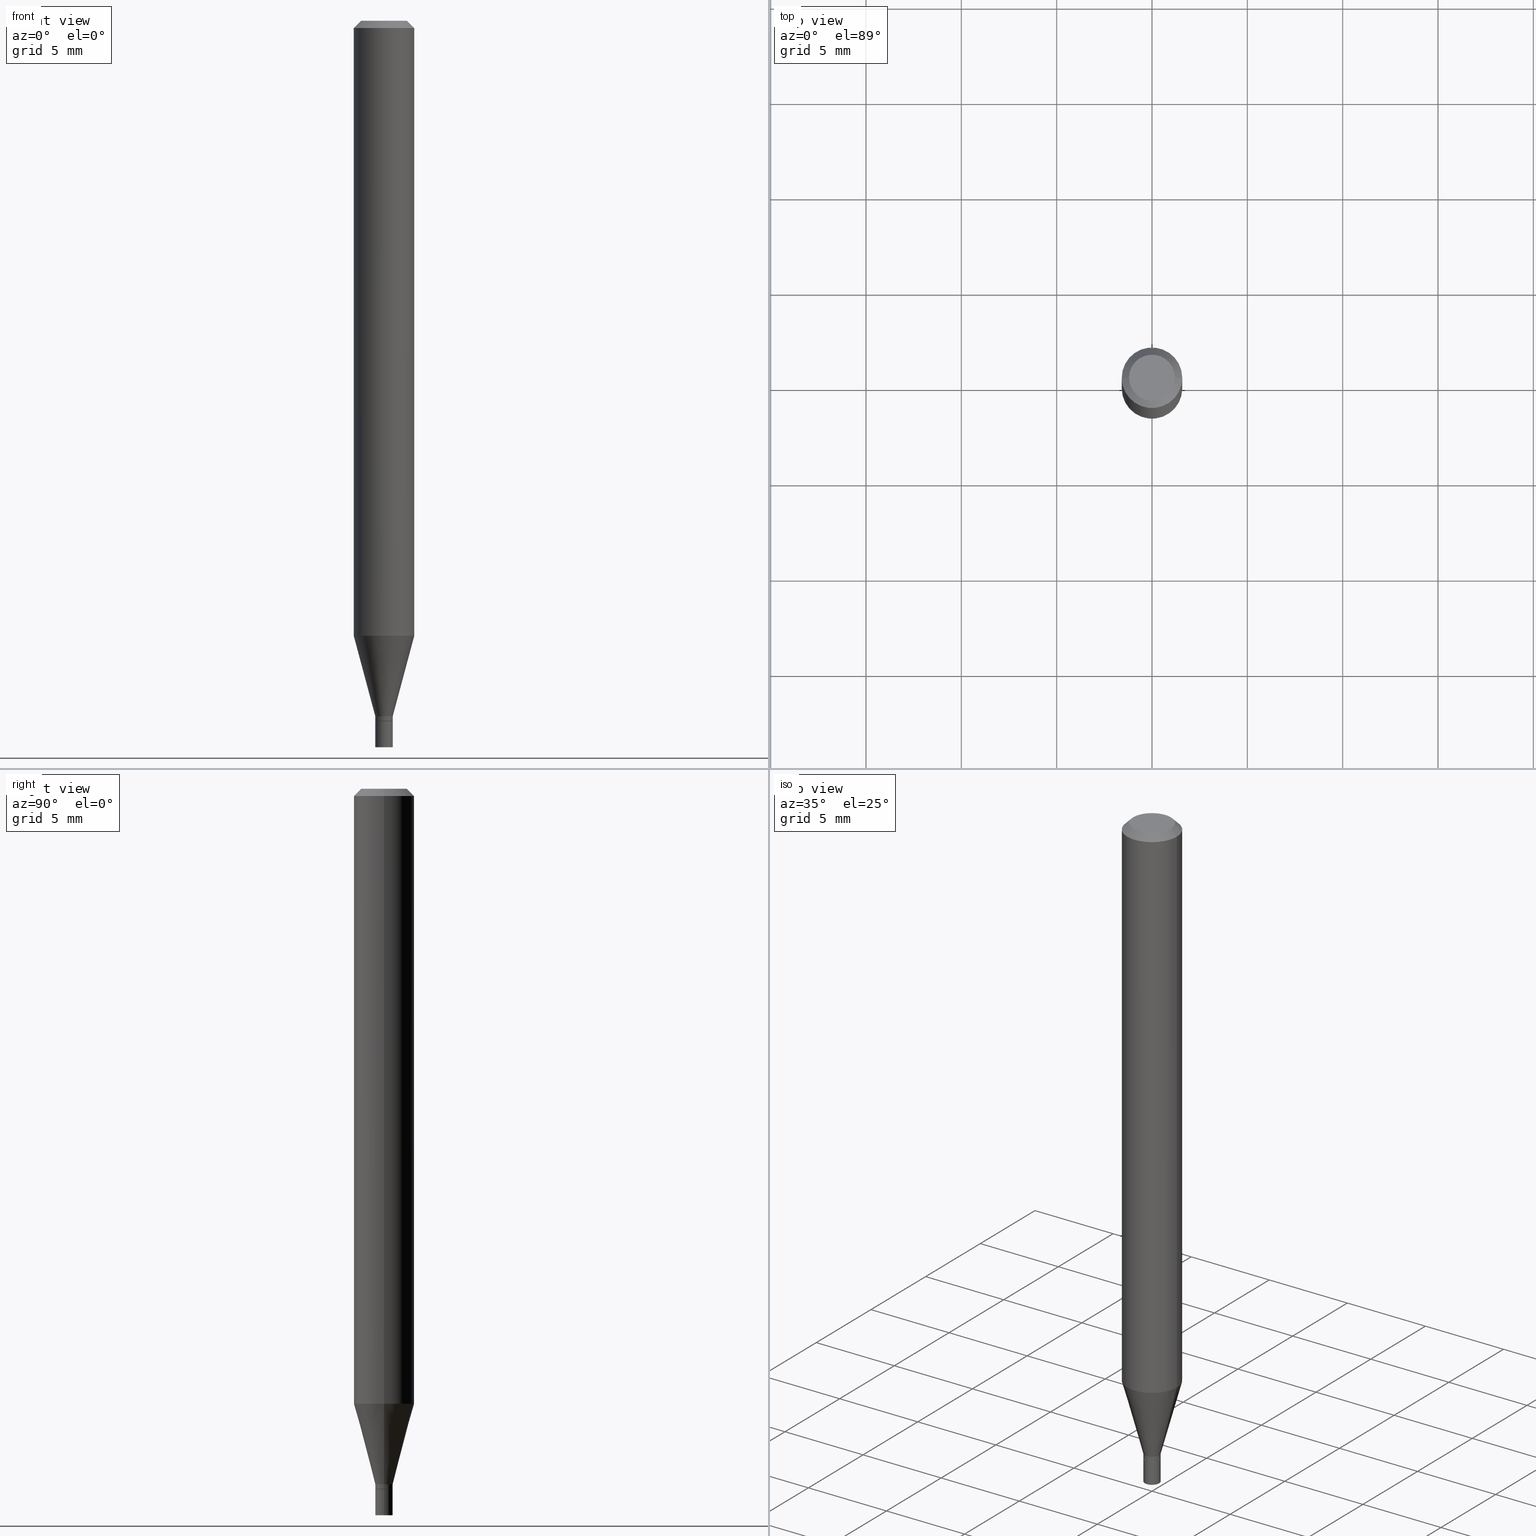
[diagram: canonical four-view strip — front | top / right | iso, engineering-drawing reading convention]
A machine part, canonical four-view strip (front | top / right | iso — engineering-drawing reading convention). The complete STEP part file that produces these views, byte-faithful:
ISO-10303-21;
HEADER;
FILE_DESCRIPTION (( 'STEP AP203' ),
    '1' );
FILE_NAME ('02269.STEP',
    '2024-03-18T19:59:06',
    ( '' ),
    ( '' ),
    'SwSTEP 2.0',
    'SolidWorks 2023',
    '' );
FILE_SCHEMA (( 'CONFIG_CONTROL_DESIGN' ));
ENDSEC;

DATA;
#1 = VERTEX_POINT ( 'NONE', #350 ) ;
#2 = EDGE_CURVE ( 'NONE', #90, #141, #33, .T. ) ;
#3 = CARTESIAN_POINT ( 'NONE',  ( -0.01799999999999991537, -4.885869510141940473E-15, -1.436000000000000165 ) ) ;
#4 = DIRECTION ( 'NONE',  ( 1.000000000000000000, -6.982962677686256455E-15, 0.000000000000000000 ) ) ;
#5 = CLOSED_SHELL ( 'NONE', ( #100, #428, #373, #200, #358, #98, #149, #268, #194, #331, #322, #387 ) ) ;
#6 = AXIS2_PLACEMENT_3D ( 'NONE', #315, #462, #118 ) ;
#7 = LOCAL_TIME ( 15, 59, 6.000000000000000000, #403 ) ;
#8 = CALENDAR_DATE ( 2024, 18, 3 ) ;
#9 = DIRECTION ( 'NONE',  ( -2.445468806185136597E-29, 3.491481338843145583E-15, 1.000000000000000000 ) ) ;
#10 = FACE_OUTER_BOUND ( 'NONE', #65, .T. ) ;
#11 = ORIENTED_EDGE ( 'NONE', *, *, #367, .F. ) ;
#12 = ORIENTED_EDGE ( 'NONE', *, *, #81, .T. ) ;
#13 = LENGTH_MEASURE_WITH_UNIT ( LENGTH_MEASURE( 0.02539999999999999897 ), #50 );
#14 = CARTESIAN_POINT ( 'NONE',  ( 3.536147893743707559E-29, -5.048682015967188692E-15, -1.446000000000000174 ) ) ;
#15 = ORIENTED_EDGE ( 'NONE', *, *, #192, .T. ) ;
#16 = PERSON_AND_ORGANIZATION ( #204, #106 ) ;
#17 = CIRCLE ( 'NONE', #45, 0.01799999999999991884 ) ;
#18 = AXIS2_PLACEMENT_3D ( 'NONE', #224, #360, #43 ) ;
#19 = DIRECTION ( 'NONE',  ( 1.000000000000000000, -6.982962677686266711E-15, 0.000000000000000000 ) ) ;
#20 = EDGE_CURVE ( 'NONE', #264, #90, #185, .T. ) ;
#21 = ORIENTED_EDGE ( 'NONE', *, *, #197, .T. ) ;
#22 = ORIENTED_EDGE ( 'NONE', *, *, #197, .F. ) ;
#23 = CARTESIAN_POINT ( 'NONE',  ( 3.536147893743707559E-29, -5.048682015967188692E-15, -1.446000000000000174 ) ) ;
#24 = ORIENTED_EDGE ( 'NONE', *, *, #269, .T. ) ;
#25 = DIRECTION ( 'NONE',  ( 1.000000000000000000, -6.982962677686279332E-15, 0.000000000000000000 ) ) ;
#26 = COORDINATED_UNIVERSAL_TIME_OFFSET ( 5, 0, .BEHIND. ) ;
#27 = CC_DESIGN_PERSON_AND_ORGANIZATION_ASSIGNMENT ( #343, #172, ( #466 ) ) ;
#28 = AXIS2_PLACEMENT_3D ( 'NONE', #449, #186, #464 ) ;
#29 = CARTESIAN_POINT ( 'NONE',  ( -0.06250000000000000000, -3.989825826842961648E-15, -1.269923739063185453 ) ) ;
#30 = ORIENTED_EDGE ( 'NONE', *, *, #415, .T. ) ;
#31 = LINE ( 'NONE', #182, #394 ) ;
#32 = CYLINDRICAL_SURFACE ( 'NONE', #83, 0.06250000000000000000 ) ;
#33 = LINE ( 'NONE', #283, #153 ) ;
#34 = CC_DESIGN_PERSON_AND_ORGANIZATION_ASSIGNMENT ( #445, #311, ( #76 ) ) ;
#35 = CARTESIAN_POINT ( 'NONE',  ( 3.105558890113012854E-29, -4.433915036693023476E-15, -1.269923739063185453 ) ) ;
#36 = PLANE ( 'NONE',  #275 ) ;
#37 = DIRECTION ( 'NONE',  ( -2.445468806185136877E-29, 3.491481338843145188E-15, 1.000000000000000000 ) ) ;
#38 = VECTOR ( 'NONE', #432, 39.37007874015748143 ) ;
#39 = VECTOR ( 'NONE', #190, 39.37007874015748143 ) ;
#40 = CARTESIAN_POINT ( 'NONE',  ( -0.06250000000000000000, 4.440892098500626162E-16, -3.074334431409316114E-30 ) ) ;
#41 = APPROVAL ( #238, 'UNSPECIFIED' ) ;
#42 = EDGE_LOOP ( 'NONE', ( #243, #298, #12, #198 ) ) ;
#43 = DIRECTION ( 'NONE',  ( 1.000000000000000000, -6.982962677686265922E-15, 4.876176775795935232E-29 ) ) ;
#44 = CARTESIAN_POINT ( 'NONE',  ( -0.01799999999999991884, -4.919038582860949830E-15, -1.445500000000000229 ) ) ;
#45 = AXIS2_PLACEMENT_3D ( 'NONE', #239, #52, #4 ) ;
#46 = CIRCLE ( 'NONE', #399, 0.01799999999999999864 ) ;
#47 = ORIENTED_EDGE ( 'NONE', *, *, #183, .T. ) ;
#48 = DIRECTION ( 'NONE',  ( 1.000000000000000000, -6.982962677686265922E-15, 4.876176775795935232E-29 ) ) ;
#49 = DIRECTION ( 'NONE',  ( -1.000000000000000000, 6.982962677686266711E-15, 0.000000000000000000 ) ) ;
#50 =( LENGTH_UNIT ( ) NAMED_UNIT ( * ) SI_UNIT ( $, .METRE. ) );
#51 = SHAPE_DEFINITION_REPRESENTATION ( #140, #287 ) ;
#52 = DIRECTION ( 'NONE',  ( -2.445468806185136597E-29, 3.491481338843145583E-15, 1.000000000000000000 ) ) ;
#53 = EDGE_LOOP ( 'NONE', ( #160, #86, #262, #137 ) ) ;
#54 = COORDINATED_UNIVERSAL_TIME_OFFSET ( 5, 0, .BEHIND. ) ;
#55 = AXIS2_PLACEMENT_3D ( 'NONE', #35, #187, #423 ) ;
#56 = CARTESIAN_POINT ( 'NONE',  ( 0.000000000000000000, 0.000000000000000000, 0.000000000000000000 ) ) ;
#57 = VERTEX_POINT ( 'NONE', #152 ) ;
#58 = EDGE_CURVE ( 'NONE', #164, #438, #465, .T. ) ;
#59 = ORIENTED_EDGE ( 'NONE', *, *, #108, .T. ) ;
#60 = ORIENTED_EDGE ( 'NONE', *, *, #64, .F. ) ;
#61 = APPROVAL_ROLE ( '' ) ;
#62 = CONICAL_SURFACE ( 'NONE', #448, 0.01749999999999999820, 0.7853981633974718157 ) ;
#63 = CIRCLE ( 'NONE', #286, 0.01749999999999999820 ) ;
#64 = EDGE_CURVE ( 'NONE', #89, #90, #242, .T. ) ;
#65 = EDGE_LOOP ( 'NONE', ( #145, #379, #332, #177 ) ) ;
#66 = APPROVAL_STATUS ( 'not_yet_approved' ) ;
#67 = ORIENTED_EDGE ( 'NONE', *, *, #58, .T. ) ;
#68 = COORDINATED_UNIVERSAL_TIME_OFFSET ( 5, 0, .BEHIND. ) ;
#69 = CARTESIAN_POINT ( 'NONE',  ( 0.06250000000000000000, -4.870350204048415934E-15, -1.269923739063185453 ) ) ;
#70 = CONICAL_SURFACE ( 'NONE', #75, 0.01799999999999991537, 0.2617993877991502960 ) ;
#71 = DIRECTION ( 'NONE',  ( -2.445468806185136597E-29, 3.491481338843145583E-15, 1.000000000000000000 ) ) ;
#72 = CARTESIAN_POINT ( 'NONE',  ( 3.536147893743707559E-29, -5.048682015967188692E-15, -1.446000000000000174 ) ) ;
#73 = DIRECTION ( 'NONE',  ( 1.000000000000000000, -6.982962677686258033E-15, 0.000000000000000000 ) ) ;
#74 = DIRECTION ( 'NONE',  ( 1.000000000000000000, -6.982962677686266711E-15, 4.876176775795935793E-29 ) ) ;
#75 = AXIS2_PLACEMENT_3D ( 'NONE', #396, #292, #435 ) ;
#76 = SECURITY_CLASSIFICATION ( '', '', #179 ) ;
#77 = FACE_OUTER_BOUND ( 'NONE', #132, .T. ) ;
#78 = CARTESIAN_POINT ( 'NONE',  ( 0.01749999999999999820, -5.170883862826697886E-15, -1.446000000000000174 ) ) ;
#79 = DIRECTION ( 'NONE',  ( 2.445468806185136597E-29, -3.491481338843145583E-15, -1.000000000000000000 ) ) ;
#80 = DIRECTION ( 'NONE',  ( -2.445468806185136597E-29, 3.491481338843145583E-15, 1.000000000000000000 ) ) ;
#81 = EDGE_CURVE ( 'NONE', #141, #438, #189, .T. ) ;
#82 = ADVANCED_FACE ( 'NONE', ( #119 ), #392, .T. ) ;
#83 = AXIS2_PLACEMENT_3D ( 'NONE', #111, #313, #74 ) ;
#84 = FACE_OUTER_BOUND ( 'NONE', #300, .T. ) ;
#85 = DIRECTION ( 'NONE',  ( 1.000000000000000000, -6.982962677686250144E-15, 0.000000000000000000 ) ) ;
#86 = ORIENTED_EDGE ( 'NONE', *, *, #367, .T. ) ;
#87 = EDGE_CURVE ( 'NONE', #165, #308, #417, .T. ) ;
#88 = APPLICATION_PROTOCOL_DEFINITION ( 'international standard', 'config_control_design', 1994, #143 ) ;
#89 = VERTEX_POINT ( 'NONE', #44 ) ;
#90 = VERTEX_POINT ( 'NONE', #123 ) ;
#91 = AXIS2_PLACEMENT_3D ( 'NONE', #395, #79, #227 ) ;
#92 = AXIS2_PLACEMENT_3D ( 'NONE', #56, #130, #96 ) ;
#93 = PERSON_AND_ORGANIZATION ( #204, #106 ) ;
#94 = FACE_OUTER_BOUND ( 'NONE', #346, .T. ) ;
#95 = VERTEX_POINT ( 'NONE', #253 ) ;
#96 = DIRECTION ( 'NONE',  ( 1.000000000000000000, 0.000000000000000000, 0.000000000000000000 ) ) ;
#97 = FACE_OUTER_BOUND ( 'NONE', #276, .T. ) ;
#98 = ADVANCED_FACE ( 'NONE', ( #254 ), #70, .T. ) ;
#99 = DIRECTION ( 'NONE',  ( -2.445468806185136597E-29, 3.491481338843145583E-15, 1.000000000000000000 ) ) ;
#100 = ADVANCED_FACE ( 'NONE', ( #397 ), #129, .T. ) ;
#101 = ORIENTED_EDGE ( 'NONE', *, *, #127, .F. ) ;
#102 = DATE_TIME_ROLE ( 'creation_date' ) ;
#103 = DIRECTION ( 'NONE',  ( 1.000000000000000000, -6.982962677686279332E-15, 0.000000000000000000 ) ) ;
#104 = ORIENTED_EDGE ( 'NONE', *, *, #344, .F. ) ;
#105 = AXIS2_PLACEMENT_3D ( 'NONE', #257, #131, #19 ) ;
#106 = ORGANIZATION ( 'UNSPECIFIED', 'UNSPECIFIED', '' ) ;
#107 = ORIENTED_EDGE ( 'NONE', *, *, #456, .F. ) ;
#108 = EDGE_CURVE ( 'NONE', #244, #264, #307, .T. ) ;
#109 = DIRECTION ( 'NONE',  ( -2.445468806185136597E-29, 3.491481338843145583E-15, 1.000000000000000000 ) ) ;
#110 = CARTESIAN_POINT ( 'NONE',  ( 0.04749999999999999362, -4.035134999187587991E-16, -5.229656247639753758E-16 ) ) ;
#111 = CARTESIAN_POINT ( 'NONE',  ( 0.000000000000000000, 0.000000000000000000, 0.000000000000000000 ) ) ;
#112 = AXIS2_PLACEMENT_3D ( 'NONE', #425, #80, #116 ) ;
#113 = VECTOR ( 'NONE', #422, 39.37007874015748143 ) ;
#114 = DIRECTION ( 'NONE',  ( 1.000000000000000000, -6.982962677686266711E-15, 0.000000000000000000 ) ) ;
#115 = EDGE_CURVE ( 'NONE', #1, #171, #263, .T. ) ;
#116 = DIRECTION ( 'NONE',  ( 1.000000000000000000, -6.982962677686267499E-15, 4.852736867747366768E-29 ) ) ;
#117 = CARTESIAN_POINT ( 'NONE',  ( 0.06250000000000000000, -4.888073874380388472E-16, -0.01499999999999999944 ) ) ;
#118 = DIRECTION ( 'NONE',  ( 1.000000000000000000, -6.982962677686256455E-15, 0.000000000000000000 ) ) ;
#119 = FACE_OUTER_BOUND ( 'NONE', #273, .T. ) ;
#120 = CARTESIAN_POINT ( 'NONE',  ( 3.668203209277705088E-31, -5.237222008264718399E-17, -0.01499999999999999944 ) ) ;
#121 = AXIS2_PLACEMENT_3D ( 'NONE', #230, #364, #48 ) ;
#122 = CARTESIAN_POINT ( 'NONE',  ( -0.01749999999999999820, -4.921687810035061031E-15, -1.446000000000000174 ) ) ;
#123 = CARTESIAN_POINT ( 'NONE',  ( 0.01799999999999991884, -5.172629603496119389E-15, -1.445500000000000229 ) ) ;
#124 = CC_DESIGN_DATE_AND_TIME_ASSIGNMENT ( #400, #102, ( #443 ) ) ;
#125 = DIRECTION ( 'NONE',  ( 1.000000000000000000, -6.982962677686250144E-15, 0.000000000000000000 ) ) ;
#126 = CIRCLE ( 'NONE', #349, 0.01799999999999999864 ) ;
#127 = EDGE_CURVE ( 'NONE', #334, #1, #203, .T. ) ;
#128 = FACE_OUTER_BOUND ( 'NONE', #374, .T. ) ;
#129 = CYLINDRICAL_SURFACE ( 'NONE', #121, 0.01799999999999991884 ) ;
#130 = DIRECTION ( 'NONE',  ( 0.000000000000000000, 0.000000000000000000, 1.000000000000000000 ) ) ;
#131 = DIRECTION ( 'NONE',  ( -2.445468806185136597E-29, 3.491481338843145583E-15, 1.000000000000000000 ) ) ;
#132 = EDGE_LOOP ( 'NONE', ( #11, #208, #454, #174 ) ) ;
#133 = PRODUCT ( '02269', '02269', '', ( #405 ) ) ;
#134 = EDGE_CURVE ( 'NONE', #165, #95, #336, .T. ) ;
#135 = EDGE_CURVE ( 'NONE', #438, #171, #249, .T. ) ;
#136 = CIRCLE ( 'NONE', #147, 0.06250000000000000000 ) ;
#137 = ORIENTED_EDGE ( 'NONE', *, *, #2, .F. ) ;
#138 = CIRCLE ( 'NONE', #246, 0.06250000000000000000 ) ;
#139 = CARTESIAN_POINT ( 'NONE',  ( -0.04749999999999999362, 3.578768372314202124E-16, -5.229656247639803061E-16 ) ) ;
#140 = PRODUCT_DEFINITION_SHAPE ( 'NONE', 'NONE',  #443 ) ;
#141 = VERTEX_POINT ( 'NONE', #221 ) ;
#142 = FACE_OUTER_BOUND ( 'NONE', #291, .T. ) ;
#143 = APPLICATION_CONTEXT ( 'configuration controlled 3d designs of mechanical parts and assemblies' ) ;
#144 = ORIENTED_EDGE ( 'NONE', *, *, #135, .F. ) ;
#145 = ORIENTED_EDGE ( 'NONE', *, *, #415, .F. ) ;
#146 = DATE_AND_TIME ( #274, #386 ) ;
#147 = AXIS2_PLACEMENT_3D ( 'NONE', #352, #9, #256 ) ;
#148 = APPROVAL_PERSON_ORGANIZATION ( #380, #453, #175 ) ;
#149 = ADVANCED_FACE ( 'NONE', ( #215 ), #32, .T. ) ;
#150 = CARTESIAN_POINT ( 'NONE',  ( 3.668203209277705088E-31, -5.237222008264718399E-17, -0.01499999999999999944 ) ) ;
#151 = CC_DESIGN_PERSON_AND_ORGANIZATION_ASSIGNMENT ( #419, #303, ( #466 ) ) ;
#152 = CARTESIAN_POINT ( 'NONE',  ( -0.01799999999999991537, -4.437847668492451061E-15, -1.436000000000000165 ) ) ;
#153 = VECTOR ( 'NONE', #250, 39.37007874015748143 ) ;
#154 = AXIS2_PLACEMENT_3D ( 'NONE', #205, #333, #168 ) ;
#155 = LOCAL_TIME ( 15, 59, 6.000000000000000000, #54 ) ;
#156 = CC_DESIGN_PERSON_AND_ORGANIZATION_ASSIGNMENT ( #93, #202, ( #133 ) ) ;
#157 = PRODUCT_RELATED_PRODUCT_CATEGORY ( 'detail', '', ( #133 ) ) ;
#158 = AXIS2_PLACEMENT_3D ( 'NONE', #288, #247, #73 ) ;
#159 = AXIS2_PLACEMENT_3D ( 'NONE', #23, #71, #356 ) ;
#160 = ORIENTED_EDGE ( 'NONE', *, *, #344, .T. ) ;
#161 = APPLICATION_CONTEXT ( 'configuration controlled 3d designs of mechanical parts and assemblies' ) ;
#162 = DIRECTION ( 'NONE',  ( -0.2588190451025215721, 5.211531920934551831E-15, 0.9659258262890679791 ) ) ;
#163 = CC_DESIGN_APPROVAL ( #41, ( #443 ) ) ;
#164 = VERTEX_POINT ( 'NONE', #29 ) ;
#165 = VERTEX_POINT ( 'NONE', #280 ) ;
#166 = ORIENTED_EDGE ( 'NONE', *, *, #87, .F. ) ;
#167 =( NAMED_UNIT ( * ) PLANE_ANGLE_UNIT ( ) SI_UNIT ( $, .RADIAN. ) );
#168 = DIRECTION ( 'NONE',  ( 1.000000000000000000, -6.982962677686258033E-15, 0.000000000000000000 ) ) ;
#169 = CIRCLE ( 'NONE', #229, 0.04749999999999999362 ) ;
#170 = DIRECTION ( 'NONE',  ( -0.7071067811865598962, 2.468850131082386434E-15, -0.7071067811865351382 ) ) ;
#171 = VERTEX_POINT ( 'NONE', #117 ) ;
#172 = PERSON_AND_ORGANIZATION_ROLE ( 'creator' ) ;
#173 = DIRECTION ( 'NONE',  ( -2.445468806185136597E-29, 3.491481338843145583E-15, 1.000000000000000000 ) ) ;
#174 = ORIENTED_EDGE ( 'NONE', *, *, #226, .F. ) ;
#175 = APPROVAL_ROLE ( '' ) ;
#176 = DIRECTION ( 'NONE',  ( -2.445468806185136597E-29, 3.491481338843145583E-15, 1.000000000000000000 ) ) ;
#177 = ORIENTED_EDGE ( 'NONE', *, *, #192, .F. ) ;
#178 = LINE ( 'NONE', #459, #113 ) ;
#179 = SECURITY_CLASSIFICATION_LEVEL ( 'unclassified' ) ;
#180 = VECTOR ( 'NONE', #354, 39.37007874015748143 ) ;
#181 = CARTESIAN_POINT ( 'NONE',  ( 0.01799999999999999864, -5.174375344165541682E-15, -1.446000000000000174 ) ) ;
#182 = CARTESIAN_POINT ( 'NONE',  ( -0.01749999999999999820, -4.924337037209170654E-15, -1.446000000000000174 ) ) ;
#183 = EDGE_CURVE ( 'NONE', #320, #171, #426, .T. ) ;
#184 = DIRECTION ( 'NONE',  ( 0.7071067811865598962, -7.319954787623298644E-15, -0.7071067811865351382 ) ) ;
#185 = LINE ( 'NONE', #458, #180 ) ;
#186 = DIRECTION ( 'NONE',  ( 2.438088387897960049E-29, -3.491481338843145188E-15, -1.000000000000000000 ) ) ;
#187 = DIRECTION ( 'NONE',  ( -2.445468806185136597E-29, 3.491481338843145583E-15, 1.000000000000000000 ) ) ;
#188 = AXIS2_PLACEMENT_3D ( 'NONE', #223, #359, #191 ) ;
#189 = LINE ( 'NONE', #248, #421 ) ;
#190 = DIRECTION ( 'NONE',  ( -2.445468806185136877E-29, 3.491481338843145188E-15, 1.000000000000000000 ) ) ;
#191 = DIRECTION ( 'NONE',  ( 1.000000000000000000, -6.982962677686266711E-15, 4.876176775795935232E-29 ) ) ;
#192 = EDGE_CURVE ( 'NONE', #342, #308, #398, .T. ) ;
#193 = VECTOR ( 'NONE', #170, 39.37007874015748143 ) ;
#194 = ADVANCED_FACE ( 'NONE', ( #306 ), #457, .F. ) ;
#195 = ORIENTED_EDGE ( 'NONE', *, *, #134, .T. ) ;
#196 = CARTESIAN_POINT ( 'NONE',  ( 3.576687321579069994E-29, -5.368277968210015545E-15, -1.500000000000000222 ) ) ;
#197 = EDGE_CURVE ( 'NONE', #334, #320, #460, .T. ) ;
#198 = ORIENTED_EDGE ( 'NONE', *, *, #58, .F. ) ;
#199 = PERSON_AND_ORGANIZATION ( #204, #106 ) ;
#200 = ADVANCED_FACE ( 'NONE', ( #390 ), #220, .T. ) ;
#201 = ORIENTED_EDGE ( 'NONE', *, *, #127, .T. ) ;
#202 = PERSON_AND_ORGANIZATION_ROLE ( 'design_owner' ) ;
#203 = LINE ( 'NONE', #301, #193 ) ;
#204 = PERSON ( 'UNSPECIFIED', 'UNSPECIFIED', 'UNSPECIFIED', ('UNSPECIFIED'), ('UNSPECIFIED'), ('UNSPECIFIED') ) ;
#205 = CARTESIAN_POINT ( 'NONE',  ( 3.511693205681857135E-29, -5.013767202578757831E-15, -1.436000000000000165 ) ) ;
#206 = ORIENTED_EDGE ( 'NONE', *, *, #115, .T. ) ;
#207 = AXIS2_PLACEMENT_3D ( 'NONE', #272, #412, #103 ) ;
#208 = ORIENTED_EDGE ( 'NONE', *, *, #64, .T. ) ;
#209 = CC_DESIGN_APPROVAL ( #453, ( #76 ) ) ;
#210 = CARTESIAN_POINT ( 'NONE',  ( 1.278896122067429216E-44, -1.825924719719875646E-30, -5.229656247639779395E-16 ) ) ;
#211 = ORIENTED_EDGE ( 'NONE', *, *, #20, .T. ) ;
#212 = DIRECTION ( 'NONE',  ( -2.438088387897960049E-29, 3.491481338843145188E-15, 1.000000000000000000 ) ) ;
#213 = ORIENTED_EDGE ( 'NONE', *, *, #295, .T. ) ;
#214 = DATE_TIME_ROLE ( 'classification_date' ) ;
#215 = FACE_OUTER_BOUND ( 'NONE', #409, .T. ) ;
#216 = VECTOR ( 'NONE', #162, 39.37007874015748143 ) ;
#217 = LOCAL_TIME ( 15, 59, 6.000000000000000000, #68 ) ;
#218 = CARTESIAN_POINT ( 'NONE',  ( 1.256933281983881437E-16, 0.01799999999999494713, -1.446000000000000174 ) ) ;
#219 = ORIENTED_EDGE ( 'NONE', *, *, #134, .F. ) ;
#220 = CYLINDRICAL_SURFACE ( 'NONE', #318, 0.06250000000000000000 ) ;
#221 = CARTESIAN_POINT ( 'NONE',  ( 0.01799999999999991537, -5.139460530777110033E-15, -1.436000000000000165 ) ) ;
#222 = APPROVAL_PERSON_ORGANIZATION ( #241, #233, #61 ) ;
#223 = CARTESIAN_POINT ( 'NONE',  ( 0.000000000000000000, 0.000000000000000000, 0.000000000000000000 ) ) ;
#224 = CARTESIAN_POINT ( 'NONE',  ( 0.000000000000000000, 0.000000000000000000, 0.000000000000000000 ) ) ;
#225 = FACE_OUTER_BOUND ( 'NONE', #371, .T. ) ;
#226 = EDGE_CURVE ( 'NONE', #57, #141, #393, .T. ) ;
#227 = DIRECTION ( 'NONE',  ( -1.000000000000000000, 6.982962677686266711E-15, 0.000000000000000000 ) ) ;
#228 = ORIENTED_EDGE ( 'NONE', *, *, #108, .F. ) ;
#229 = AXIS2_PLACEMENT_3D ( 'NONE', #210, #442, #341 ) ;
#230 = CARTESIAN_POINT ( 'NONE',  ( 0.000000000000000000, 0.000000000000000000, 0.000000000000000000 ) ) ;
#231 = ADVANCED_FACE ( 'NONE', ( #355 ), #36, .F. ) ;
#232 = ORIENTED_EDGE ( 'NONE', *, *, #115, .F. ) ;
#233 = APPROVAL ( #378, 'UNSPECIFIED' ) ;
#234 = DIRECTION ( 'NONE',  ( 1.000000000000000000, -6.982962677686266711E-15, 4.876176775795935232E-29 ) ) ;
#235 = ORIENTED_EDGE ( 'NONE', *, *, #295, .F. ) ;
#236 = ORIENTED_EDGE ( 'NONE', *, *, #420, .T. ) ;
#237 =( NAMED_UNIT ( * ) SI_UNIT ( $, .STERADIAN. ) SOLID_ANGLE_UNIT ( ) );
#238 = APPROVAL_STATUS ( 'not_yet_approved' ) ;
#239 = CARTESIAN_POINT ( 'NONE',  ( 3.534925159340615318E-29, -5.046936275297767188E-15, -1.445500000000000229 ) ) ;
#240 = ORIENTED_EDGE ( 'NONE', *, *, #439, .F. ) ;
#241 = PERSON_AND_ORGANIZATION ( #204, #106 ) ;
#242 = CIRCLE ( 'NONE', #6, 0.01799999999999991884 ) ;
#243 = ORIENTED_EDGE ( 'NONE', *, *, #389, .F. ) ;
#244 = VERTEX_POINT ( 'NONE', #122 ) ;
#245 = AXIS2_PLACEMENT_3D ( 'NONE', #362, #173, #388 ) ;
#246 = AXIS2_PLACEMENT_3D ( 'NONE', #150, #450, #114 ) ;
#247 = DIRECTION ( 'NONE',  ( -2.445468806185136597E-29, 3.491481338843145583E-15, 1.000000000000000000 ) ) ;
#248 = CARTESIAN_POINT ( 'NONE',  ( 0.01799999999999991537, -5.139460530777110033E-15, -1.436000000000000165 ) ) ;
#249 = LINE ( 'NONE', #345, #385 ) ;
#250 = DIRECTION ( 'NONE',  ( -2.445468806185136877E-29, 3.491481338843145188E-15, 1.000000000000000000 ) ) ;
#251 = CYLINDRICAL_SURFACE ( 'NONE', #18, 0.01799999999999991884 ) ;
#252 = DIRECTION ( 'NONE',  ( 2.438088387897960049E-29, -3.491481338843145188E-15, -1.000000000000000000 ) ) ;
#253 = CARTESIAN_POINT ( 'NONE',  ( -0.01799999999999999864, -5.015054319679134893E-15, -1.500000000000000222 ) ) ;
#254 = FACE_OUTER_BOUND ( 'NONE', #42, .T. ) ;
#255 = DIRECTION ( 'NONE',  ( 1.000000000000000000, -6.982962677686279332E-15, 0.000000000000000000 ) ) ;
#256 = DIRECTION ( 'NONE',  ( 1.000000000000000000, -6.982962677686262766E-15, 0.000000000000000000 ) ) ;
#257 = CARTESIAN_POINT ( 'NONE',  ( 3.668203209277705088E-31, -5.237222008264718399E-17, -0.01499999999999999944 ) ) ;
#258 = APPLICATION_PROTOCOL_DEFINITION ( 'international standard', 'config_control_design', 1994, #161 ) ;
#259 = LINE ( 'NONE', #3, #216 ) ;
#260 = DIRECTION ( 'NONE',  ( 1.000000000000000000, -6.982962677686265922E-15, 4.876176775795935793E-29 ) ) ;
#261 = DIRECTION ( 'NONE',  ( -2.445468806185136597E-29, 3.491481338843145583E-15, 1.000000000000000000 ) ) ;
#262 = ORIENTED_EDGE ( 'NONE', *, *, #269, .F. ) ;
#263 = CIRCLE ( 'NONE', #105, 0.06250000000000000000 ) ;
#264 = VERTEX_POINT ( 'NONE', #78 ) ;
#265 = CARTESIAN_POINT ( 'NONE',  ( -0.01799999999999999864, -5.015054319679134893E-15, -1.446000000000000174 ) ) ;
#266 = CYLINDRICAL_SURFACE ( 'NONE', #370, 0.01799999999999999864 ) ;
#267 = ORIENTED_EDGE ( 'NONE', *, *, #361, .F. ) ;
#268 = ADVANCED_FACE ( 'NONE', ( #225 ), #441, .T. ) ;
#269 = EDGE_CURVE ( 'NONE', #141, #57, #327, .T. ) ;
#270 = DATE_AND_TIME ( #330, #155 ) ;
#271 = DIRECTION ( 'NONE',  ( 1.000000000000000000, -6.982962677686250144E-15, 0.000000000000000000 ) ) ;
#272 = CARTESIAN_POINT ( 'NONE',  ( 3.668203209277704895E-29, -5.237222008264718177E-15, -1.500000000000000222 ) ) ;
#273 = EDGE_LOOP ( 'NONE', ( #195, #30, #267, #166 ) ) ;
#274 = CALENDAR_DATE ( 2024, 18, 3 ) ;
#275 = AXIS2_PLACEMENT_3D ( 'NONE', #218, #252, #424 ) ;
#276 = EDGE_LOOP ( 'NONE', ( #240, #59, #211, #60 ) ) ;
#277 = APPROVAL_PERSON_ORGANIZATION ( #199, #41, #326 ) ;
#278 = COORDINATED_UNIVERSAL_TIME_OFFSET ( 5, 0, .BEHIND. ) ;
#279 = EDGE_CURVE ( 'NONE', #438, #164, #136, .T. ) ;
#280 = CARTESIAN_POINT ( 'NONE',  ( 0.01799999999999999864, -5.362915336463071956E-15, -1.500000000000000222 ) ) ;
#281 = FACE_OUTER_BOUND ( 'NONE', #413, .T. ) ;
#282 = ADVANCED_FACE ( 'NONE', ( #128 ), #369, .F. ) ;
#283 = CARTESIAN_POINT ( 'NONE',  ( 0.01799999999999991884, -1.256933281983522259E-16, 8.777118196432644280E-31 ) ) ;
#284 = DATE_AND_TIME ( #455, #461 ) ;
#285 = AXIS2_PLACEMENT_3D ( 'NONE', #321, #433, #125 ) ;
#286 = AXIS2_PLACEMENT_3D ( 'NONE', #72, #351, #85 ) ;
#287 = ADVANCED_BREP_SHAPE_REPRESENTATION ( '02269', ( #463, #305, #92 ), #337 ) ;
#288 = CARTESIAN_POINT ( 'NONE',  ( 3.511693205681857135E-29, -5.013767202578757831E-15, -1.436000000000000165 ) ) ;
#289 = CONICAL_SURFACE ( 'NONE', #309, 0.01749999999999999820, 0.7853981633974718157 ) ;
#290 = CARTESIAN_POINT ( 'NONE',  ( -0.01799999999999991884, 1.278976924368174568E-16, -8.854083162458788901E-31 ) ) ;
#291 = EDGE_LOOP ( 'NONE', ( #107, #228 ) ) ;
#292 = DIRECTION ( 'NONE',  ( -2.445468806185136597E-29, 3.491481338843145583E-15, 1.000000000000000000 ) ) ;
#293 = ORIENTED_EDGE ( 'NONE', *, *, #401, .T. ) ;
#294 = DIRECTION ( 'NONE',  ( -2.438088387897960049E-29, 3.491481338843145188E-15, 1.000000000000000000 ) ) ;
#295 = EDGE_CURVE ( 'NONE', #320, #334, #169, .T. ) ;
#296 = UNCERTAINTY_MEASURE_WITH_UNIT (LENGTH_MEASURE( 1.000000000000000082E-05 ), #377, 'distance_accuracy_value', 'NONE');
#297 = CARTESIAN_POINT ( 'NONE',  ( 0.000000000000000000, 0.000000000000000000, 0.000000000000000000 ) ) ;
#298 = ORIENTED_EDGE ( 'NONE', *, *, #226, .T. ) ;
#299 = VECTOR ( 'NONE', #319, 39.37007874015748143 ) ;
#300 = EDGE_LOOP ( 'NONE', ( #235, #47, #236, #101 ) ) ;
#301 = CARTESIAN_POINT ( 'NONE',  ( -0.06250000000000000000, 3.840629472727444916E-16, -0.01499999999999999944 ) ) ;
#302 = ORIENTED_EDGE ( 'NONE', *, *, #389, .T. ) ;
#303 = PERSON_AND_ORGANIZATION_ROLE ( 'design_supplier' ) ;
#304 = ORIENTED_EDGE ( 'NONE', *, *, #420, .F. ) ;
#305 = MANIFOLD_SOLID_BREP ( 'Body-Move/Copy2[2]', #5 ) ;
#306 = FACE_OUTER_BOUND ( 'NONE', #402, .T. ) ;
#307 = CIRCLE ( 'NONE', #285, 0.01749999999999999820 ) ;
#308 = VERTEX_POINT ( 'NONE', #181 ) ;
#309 = AXIS2_PLACEMENT_3D ( 'NONE', #418, #109, #383 ) ;
#310 = CARTESIAN_POINT ( 'NONE',  ( 3.668203209277704895E-29, -5.237222008264718177E-15, -1.500000000000000222 ) ) ;
#311 = PERSON_AND_ORGANIZATION_ROLE ( 'classification_officer' ) ;
#312 = CARTESIAN_POINT ( 'NONE',  ( 3.536147893743707559E-29, -5.048682015967188692E-15, -1.446000000000000174 ) ) ;
#313 = DIRECTION ( 'NONE',  ( -2.445468806185136597E-29, 3.491481338843145583E-15, 1.000000000000000000 ) ) ;
#314 = DIRECTION ( 'NONE',  ( -0.7071067811865642261, 7.493145998870414114E-15, 0.7071067811865309194 ) ) ;
#315 = CARTESIAN_POINT ( 'NONE',  ( 3.534925159340615318E-29, -5.046936275297767188E-15, -1.445500000000000229 ) ) ;
#316 = CONICAL_SURFACE ( 'NONE', #154, 0.01799999999999991537, 0.2617993877991502960 ) ;
#317 = CARTESIAN_POINT ( 'NONE',  ( 0.000000000000000000, 0.000000000000000000, 0.000000000000000000 ) ) ;
#318 = AXIS2_PLACEMENT_3D ( 'NONE', #317, #446, #430 ) ;
#319 = DIRECTION ( 'NONE',  ( -2.445468806185136877E-29, 3.491481338843145188E-15, 1.000000000000000000 ) ) ;
#320 = VERTEX_POINT ( 'NONE', #110 ) ;
#321 = CARTESIAN_POINT ( 'NONE',  ( 3.536147893743707559E-29, -5.048682015967188692E-15, -1.446000000000000174 ) ) ;
#322 = ADVANCED_FACE ( 'NONE', ( #97 ), #62, .T. ) ;
#323 = CC_DESIGN_PERSON_AND_ORGANIZATION_ASSIGNMENT ( #16, #410, ( #443 ) ) ;
#324 = CARTESIAN_POINT ( 'NONE',  ( 0.01799999999999999864, -1.256933281983527929E-16, 8.777118196432682816E-31 ) ) ;
#325 = LINE ( 'NONE', #290, #38 ) ;
#326 = APPROVAL_ROLE ( '' ) ;
#327 = CIRCLE ( 'NONE', #245, 0.01799999999999991537 ) ;
#328 = CC_DESIGN_APPROVAL ( #233, ( #466 ) ) ;
#329 = ORIENTED_EDGE ( 'NONE', *, *, #135, .T. ) ;
#330 = CALENDAR_DATE ( 2024, 18, 3 ) ;
#331 = ADVANCED_FACE ( 'NONE', ( #142 ), #411, .F. ) ;
#332 = ORIENTED_EDGE ( 'NONE', *, *, #87, .T. ) ;
#333 = DIRECTION ( 'NONE',  ( -2.445468806185136597E-29, 3.491481338843145583E-15, 1.000000000000000000 ) ) ;
#334 = VERTEX_POINT ( 'NONE', #139 ) ;
#335 = CLOSED_SHELL ( 'NONE', ( #82, #282, #353, #231 ) ) ;
#336 = CIRCLE ( 'NONE', #207, 0.01799999999999999864 ) ;
#337 =( GEOMETRIC_REPRESENTATION_CONTEXT ( 3 ) GLOBAL_UNCERTAINTY_ASSIGNED_CONTEXT ( ( #296 ) ) GLOBAL_UNIT_ASSIGNED_CONTEXT ( ( #377, #167, #237 ) ) REPRESENTATION_CONTEXT ( 'NONE', 'WORKASPACE' ) );
#338 = DIMENSIONAL_EXPONENTS ( 1.000000000000000000, 0.000000000000000000, 0.000000000000000000, 0.000000000000000000, 0.000000000000000000, 0.000000000000000000, 0.000000000000000000 ) ;
#339 = ORIENTED_EDGE ( 'NONE', *, *, #81, .F. ) ;
#340 = APPROVAL_DATE_TIME ( #284, #233 ) ;
#341 = DIRECTION ( 'NONE',  ( 1.000000000000000000, -6.982962677686267499E-15, 4.852736867747366768E-29 ) ) ;
#342 = VERTEX_POINT ( 'NONE', #265 ) ;
#343 = PERSON_AND_ORGANIZATION ( #204, #106 ) ;
#344 = EDGE_CURVE ( 'NONE', #90, #89, #17, .T. ) ;
#345 = CARTESIAN_POINT ( 'NONE',  ( 0.06250000000000000000, -4.364351673553916694E-16, 3.047610484872459871E-30 ) ) ;
#346 = EDGE_LOOP ( 'NONE', ( #24, #302, #440, #339 ) ) ;
#347 = LINE ( 'NONE', #40, #39 ) ;
#348 = CALENDAR_DATE ( 2024, 18, 3 ) ;
#349 = AXIS2_PLACEMENT_3D ( 'NONE', #14, #99, #255 ) ;
#350 = CARTESIAN_POINT ( 'NONE',  ( -0.06250000000000000000, -1.799054418537772859E-15, -0.01499999999999999944 ) ) ;
#351 = DIRECTION ( 'NONE',  ( -2.445468806185136597E-29, 3.491481338843145583E-15, 1.000000000000000000 ) ) ;
#352 = CARTESIAN_POINT ( 'NONE',  ( 3.105558890113012854E-29, -4.433915036693023476E-15, -1.269923739063185453 ) ) ;
#353 = ADVANCED_FACE ( 'NONE', ( #10 ), #266, .T. ) ;
#354 = DIRECTION ( 'NONE',  ( 0.7071067811865642261, -2.468850131082431399E-15, 0.7071067811865309194 ) ) ;
#355 = FACE_OUTER_BOUND ( 'NONE', #444, .T. ) ;
#356 = DIRECTION ( 'NONE',  ( 1.000000000000000000, -6.982962677686279332E-15, 0.000000000000000000 ) ) ;
#357 = AXIS2_PLACEMENT_3D ( 'NONE', #120, #365, #49 ) ;
#358 = ADVANCED_FACE ( 'NONE', ( #94 ), #316, .T. ) ;
#359 = DIRECTION ( 'NONE',  ( -2.445468806185136597E-29, 3.491481338843145583E-15, 1.000000000000000000 ) ) ;
#360 = DIRECTION ( 'NONE',  ( -2.445468806185136597E-29, 3.491481338843145583E-15, 1.000000000000000000 ) ) ;
#361 = EDGE_CURVE ( 'NONE', #308, #342, #126, .T. ) ;
#362 = CARTESIAN_POINT ( 'NONE',  ( 3.511693205681857135E-29, -5.013767202578757831E-15, -1.436000000000000165 ) ) ;
#363 = AXIS2_PLACEMENT_3D ( 'NONE', #196, #294, #260 ) ;
#364 = DIRECTION ( 'NONE',  ( -2.445468806185136597E-29, 3.491481338843145583E-15, 1.000000000000000000 ) ) ;
#365 = DIRECTION ( 'NONE',  ( 2.445468806185136597E-29, -3.491481338843145583E-15, -1.000000000000000000 ) ) ;
#366 = APPROVAL_DATE_TIME ( #451, #453 ) ;
#367 = EDGE_CURVE ( 'NONE', #89, #57, #325, .T. ) ;
#368 = ORIENTED_EDGE ( 'NONE', *, *, #279, .T. ) ;
#369 = PLANE ( 'NONE',  #363 ) ;
#370 = AXIS2_PLACEMENT_3D ( 'NONE', #297, #261, #234 ) ;
#371 = EDGE_LOOP ( 'NONE', ( #431, #22, #201, #206 ) ) ;
#372 = CARTESIAN_POINT ( 'NONE',  ( 3.536147893743707559E-29, -5.048682015967188692E-15, -1.446000000000000174 ) ) ;
#373 = ADVANCED_FACE ( 'NONE', ( #84 ), #434, .T. ) ;
#374 = EDGE_LOOP ( 'NONE', ( #219, #381 ) ) ;
#375 = APPROVAL_DATE_TIME ( #270, #41 ) ;
#376 = ORIENTED_EDGE ( 'NONE', *, *, #439, .T. ) ;
#377 =( CONVERSION_BASED_UNIT ( 'INCH', #13 ) LENGTH_UNIT ( ) NAMED_UNIT ( #338 ) );
#378 = APPROVAL_STATUS ( 'not_yet_approved' ) ;
#379 = ORIENTED_EDGE ( 'NONE', *, *, #414, .T. ) ;
#380 = PERSON_AND_ORGANIZATION ( #204, #106 ) ;
#381 = ORIENTED_EDGE ( 'NONE', *, *, #414, .F. ) ;
#382 = DESIGN_CONTEXT ( 'detailed design', #161, 'design' ) ;
#383 = DIRECTION ( 'NONE',  ( 1.000000000000000000, -6.982962677686250144E-15, 0.000000000000000000 ) ) ;
#384 = CARTESIAN_POINT ( 'NONE',  ( 0.06250000000000000000, -4.811533449433679005E-16, -0.01499999999999999944 ) ) ;
#385 = VECTOR ( 'NONE', #37, 39.37007874015748143 ) ;
#386 = LOCAL_TIME ( 15, 59, 6.000000000000000000, #278 ) ;
#387 = ADVANCED_FACE ( 'NONE', ( #77 ), #251, .T. ) ;
#388 = DIRECTION ( 'NONE',  ( 1.000000000000000000, -6.982962677686258033E-15, 0.000000000000000000 ) ) ;
#389 = EDGE_CURVE ( 'NONE', #57, #164, #259, .T. ) ;
#390 = FACE_OUTER_BOUND ( 'NONE', #447, .T. ) ;
#391 = DIRECTION ( 'NONE',  ( 0.2588190451025215721, 1.565188264969619995E-15, 0.9659258262890679791 ) ) ;
#392 = CYLINDRICAL_SURFACE ( 'NONE', #188, 0.01799999999999999864 ) ;
#393 = CIRCLE ( 'NONE', #158, 0.01799999999999991537 ) ;
#394 = VECTOR ( 'NONE', #314, 39.37007874015748143 ) ;
#395 = CARTESIAN_POINT ( 'NONE',  ( 3.668203209277705088E-31, -5.237222008264718399E-17, -0.01499999999999999944 ) ) ;
#396 = CARTESIAN_POINT ( 'NONE',  ( 3.511693205681857135E-29, -5.013767202578757831E-15, -1.436000000000000165 ) ) ;
#397 = FACE_OUTER_BOUND ( 'NONE', #53, .T. ) ;
#398 = CIRCLE ( 'NONE', #159, 0.01799999999999999864 ) ;
#399 = AXIS2_PLACEMENT_3D ( 'NONE', #310, #427, #25 ) ;
#401 = EDGE_CURVE ( 'NONE', #164, #1, #347, .T. ) ;
#400 = DATE_AND_TIME ( #8, #7 ) ;
#402 = EDGE_LOOP ( 'NONE', ( #21, #213 ) ) ;
#403 = COORDINATED_UNIVERSAL_TIME_OFFSET ( 5, 0, .BEHIND. ) ;
#404 = ORIENTED_EDGE ( 'NONE', *, *, #20, .F. ) ;
#405 = MECHANICAL_CONTEXT ( 'NONE', #143, 'mechanical' ) ;
#406 = AXIS2_PLACEMENT_3D ( 'NONE', #372, #212, #452 ) ;
#407 = VECTOR ( 'NONE', #184, 39.37007874015748143 ) ;
#408 = ORIENTED_EDGE ( 'NONE', *, *, #361, .T. ) ;
#409 = EDGE_LOOP ( 'NONE', ( #416, #67, #329, #232 ) ) ;
#410 = PERSON_AND_ORGANIZATION_ROLE ( 'creator' ) ;
#411 = PLANE ( 'NONE',  #406 ) ;
#412 = DIRECTION ( 'NONE',  ( -2.445468806185136597E-29, 3.491481338843145583E-15, 1.000000000000000000 ) ) ;
#413 = EDGE_LOOP ( 'NONE', ( #436, #376, #104, #404 ) ) ;
#414 = EDGE_CURVE ( 'NONE', #95, #165, #46, .T. ) ;
#415 = EDGE_CURVE ( 'NONE', #95, #342, #178, .T. ) ;
#416 = ORIENTED_EDGE ( 'NONE', *, *, #401, .F. ) ;
#417 = LINE ( 'NONE', #324, #299 ) ;
#418 = CARTESIAN_POINT ( 'NONE',  ( 3.536147893743707559E-29, -5.048682015967188692E-15, -1.446000000000000174 ) ) ;
#419 = PERSON_AND_ORGANIZATION ( #204, #106 ) ;
#420 = EDGE_CURVE ( 'NONE', #171, #1, #138, .T. ) ;
#421 = VECTOR ( 'NONE', #391, 39.37007874015748143 ) ;
#422 = DIRECTION ( 'NONE',  ( -2.445468806185136877E-29, 3.491481338843145188E-15, 1.000000000000000000 ) ) ;
#423 = DIRECTION ( 'NONE',  ( 1.000000000000000000, -6.982962677686262766E-15, 0.000000000000000000 ) ) ;
#424 = DIRECTION ( 'NONE',  ( -1.000000000000000000, 6.982962677686265922E-15, -4.876176775795935793E-29 ) ) ;
#425 = CARTESIAN_POINT ( 'NONE',  ( 1.278896122067429216E-44, -1.825924719719875646E-30, -5.229656247639779395E-16 ) ) ;
#426 = LINE ( 'NONE', #384, #407 ) ;
#427 = DIRECTION ( 'NONE',  ( -2.445468806185136597E-29, 3.491481338843145583E-15, 1.000000000000000000 ) ) ;
#428 = ADVANCED_FACE ( 'NONE', ( #281 ), #289, .T. ) ;
#429 = CC_DESIGN_SECURITY_CLASSIFICATION ( #76, ( #466 ) ) ;
#430 = DIRECTION ( 'NONE',  ( 1.000000000000000000, -6.982962677686266711E-15, 4.876176775795935793E-29 ) ) ;
#431 = ORIENTED_EDGE ( 'NONE', *, *, #183, .F. ) ;
#432 = DIRECTION ( 'NONE',  ( -2.445468806185136877E-29, 3.491481338843145188E-15, 1.000000000000000000 ) ) ;
#433 = DIRECTION ( 'NONE',  ( -2.445468806185136597E-29, 3.491481338843145583E-15, 1.000000000000000000 ) ) ;
#434 = CONICAL_SURFACE ( 'NONE', #357, 0.06250000000000000000, 0.7853981633974658205 ) ;
#435 = DIRECTION ( 'NONE',  ( 1.000000000000000000, -6.982962677686258033E-15, 0.000000000000000000 ) ) ;
#436 = ORIENTED_EDGE ( 'NONE', *, *, #456, .T. ) ;
#437 = CC_DESIGN_DATE_AND_TIME_ASSIGNMENT ( #146, #214, ( #76 ) ) ;
#438 = VERTEX_POINT ( 'NONE', #69 ) ;
#439 = EDGE_CURVE ( 'NONE', #244, #89, #31, .T. ) ;
#440 = ORIENTED_EDGE ( 'NONE', *, *, #279, .F. ) ;
#441 = CONICAL_SURFACE ( 'NONE', #91, 0.06250000000000000000, 0.7853981633974658205 ) ;
#442 = DIRECTION ( 'NONE',  ( -2.445468806185136597E-29, 3.491481338843145583E-15, 1.000000000000000000 ) ) ;
#443 = PRODUCT_DEFINITION ( 'UNKNOWN', '', #466, #382 ) ;
#444 = EDGE_LOOP ( 'NONE', ( #408, #15 ) ) ;
#445 = PERSON_AND_ORGANIZATION ( #204, #106 ) ;
#446 = DIRECTION ( 'NONE',  ( -2.445468806185136597E-29, 3.491481338843145583E-15, 1.000000000000000000 ) ) ;
#447 = EDGE_LOOP ( 'NONE', ( #368, #293, #304, #144 ) ) ;
#448 = AXIS2_PLACEMENT_3D ( 'NONE', #312, #176, #271 ) ;
#449 = CARTESIAN_POINT ( 'NONE',  ( 3.316907271900976096E-16, 0.04749999999999999362, -4.273281759770383169E-16 ) ) ;
#450 = DIRECTION ( 'NONE',  ( -2.445468806185136597E-29, 3.491481338843145583E-15, 1.000000000000000000 ) ) ;
#451 = DATE_AND_TIME ( #348, #217 ) ;
#452 = DIRECTION ( 'NONE',  ( 1.000000000000000000, -6.982962677686265922E-15, 4.876176775795935793E-29 ) ) ;
#453 = APPROVAL ( #66, 'UNSPECIFIED' ) ;
#454 = ORIENTED_EDGE ( 'NONE', *, *, #2, .T. ) ;
#455 = CALENDAR_DATE ( 2024, 18, 3 ) ;
#456 = EDGE_CURVE ( 'NONE', #264, #244, #63, .T. ) ;
#457 = PLANE ( 'NONE',  #28 ) ;
#458 = CARTESIAN_POINT ( 'NONE',  ( 0.01749999999999999820, -5.170883862826697886E-15, -1.446000000000000174 ) ) ;
#459 = CARTESIAN_POINT ( 'NONE',  ( -0.01799999999999999864, 1.278976924368180238E-16, -8.854083162458829188E-31 ) ) ;
#460 = CIRCLE ( 'NONE', #112, 0.04749999999999999362 ) ;
#461 = LOCAL_TIME ( 15, 59, 6.000000000000000000, #26 ) ;
#462 = DIRECTION ( 'NONE',  ( -2.445468806185136597E-29, 3.491481338843145583E-15, 1.000000000000000000 ) ) ;
#463 = MANIFOLD_SOLID_BREP ( 'Body-Move/Copy2[1]', #335 ) ;
#464 = DIRECTION ( 'NONE',  ( -1.000000000000000000, 6.982962677686265922E-15, -4.876176775795935793E-29 ) ) ;
#465 = CIRCLE ( 'NONE', #55, 0.06250000000000000000 ) ;
#466 = PRODUCT_DEFINITION_FORMATION_WITH_SPECIFIED_SOURCE ( 'ANY', '', #133, .NOT_KNOWN. ) ;
ENDSEC;
END-ISO-10303-21;
